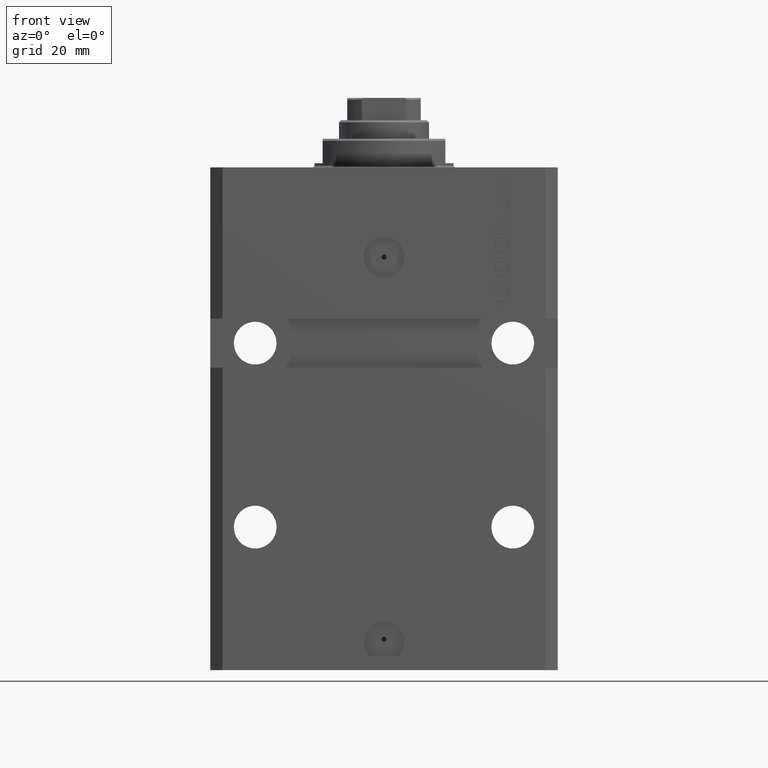
[diagram: clean part render]
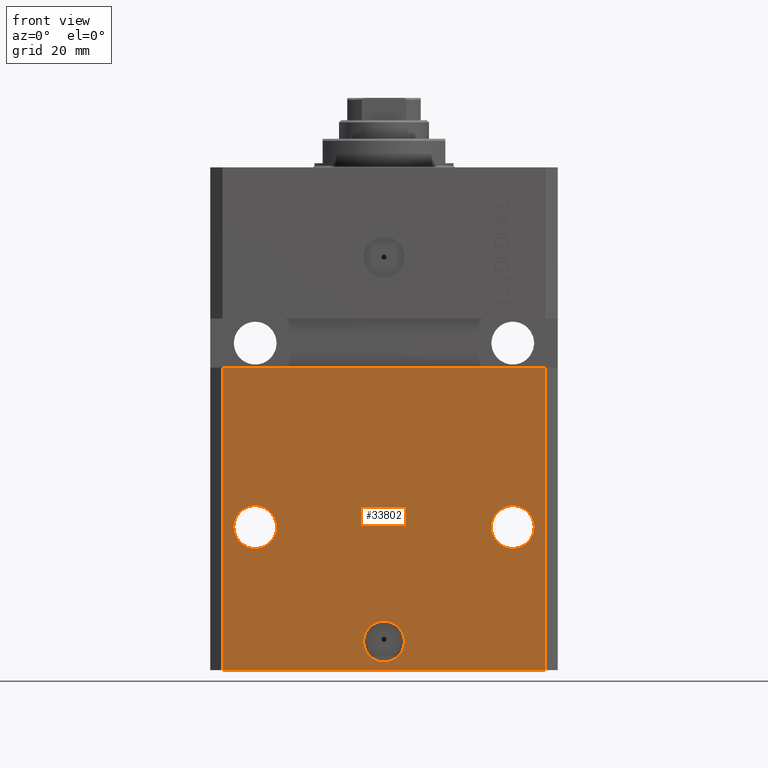
[diagram: same view with one face highlighted and labeled with its STEP entity id]
A machine part, front view. The second image highlights one B-rep face of the part: STEP entity #33802.
In plain terms, the highlighted planar face has unit normal (0, -1, 0).
Its self-contained STEP definition (entity closure, byte-faithful):
#61 = ORIENTED_EDGE ( 'NONE', *, *, #12768, .F. ) ;
#971 = CARTESIAN_POINT ( 'NONE',  ( -39.50000000000000000, -31.50000000000000711, -48.99999999999999289 ) ) ;
#1063 = VERTEX_POINT ( 'NONE', #7885 ) ;
#1460 = AXIS2_PLACEMENT_3D ( 'NONE', #17912, #22019, #25448 ) ;
#1556 = VERTEX_POINT ( 'NONE', #971 ) ;
#1798 = VERTEX_POINT ( 'NONE', #11627 ) ;
#3583 = FACE_BOUND ( 'NONE', #20636, .T. ) ;
#4498 = EDGE_CURVE ( 'NONE', #38199, #16500, #16995, .T. ) ;
#6102 = LINE ( 'NONE', #14986, #13662 ) ;
#6392 = VECTOR ( 'NONE', #36258, 1000.000000000000000 ) ;
#6416 = CIRCLE ( 'NONE', #25791, 5.249999999999997335 ) ;
#6567 = VERTEX_POINT ( 'NONE', #44858 ) ;
#6770 = FACE_OUTER_BOUND ( 'NONE', #29293, .T. ) ;
#7885 = CARTESIAN_POINT ( 'NONE',  ( -39.50000000000000711, -31.50000000000000000, -123.0000000000000000 ) ) ;
#8017 = AXIS2_PLACEMENT_3D ( 'NONE', #9445, #39141, #16976 ) ;
#9220 = CARTESIAN_POINT ( 'NONE',  ( -5.000000000000006217, -31.50000000000000000, -115.9999999999999858 ) ) ;
#9415 = CARTESIAN_POINT ( 'NONE',  ( -31.50000000000001421, -31.50000000000000711, -88.00000000000000000 ) ) ;
#9445 = CARTESIAN_POINT ( 'NONE',  ( -31.50000000000001421, -31.50000000000000711, -88.00000000000000000 ) ) ;
#9446 = ORIENTED_EDGE ( 'NONE', *, *, #19625, .F. ) ;
#10016 = EDGE_CURVE ( 'NONE', #16500, #38199, #26492, .T. ) ;
#10411 = FACE_BOUND ( 'NONE', #45045, .T. ) ;
#10451 = ORIENTED_EDGE ( 'NONE', *, *, #34429, .F. ) ;
#11627 = CARTESIAN_POINT ( 'NONE',  ( 39.50000000000001421, -31.49999999999999289, -48.99999999999997868 ) ) ;
#12768 = EDGE_CURVE ( 'NONE', #42271, #43674, #6416, .T. ) ;
#13244 = ORIENTED_EDGE ( 'NONE', *, *, #16284, .F. ) ;
#13662 = VECTOR ( 'NONE', #28199, 1000.000000000000000 ) ;
#14120 = CARTESIAN_POINT ( 'NONE',  ( -42.50000000000000000, -31.50000000000000711, -48.99999999999999289 ) ) ;
#14542 = CARTESIAN_POINT ( 'NONE',  ( 31.50000000000001421, -31.49999999999999289, -88.00000000000000000 ) ) ;
#14599 = CARTESIAN_POINT ( 'NONE',  ( -39.50000000000000711, -31.50000000000000000, -123.0000000000000000 ) ) ;
#14986 = CARTESIAN_POINT ( 'NONE',  ( 39.50000000000000711, -31.50000000000000000, -123.0000000000000000 ) ) ;
#16284 = EDGE_CURVE ( 'NONE', #1556, #1798, #26256, .T. ) ;
#16500 = VERTEX_POINT ( 'NONE', #9220 ) ;
#16976 = DIRECTION ( 'NONE',  ( -1.000000000000000000, 0.000000000000000000, 0.000000000000000000 ) ) ;
#16995 = CIRCLE ( 'NONE', #1460, 5.000000000000006217 ) ;
#17248 = VERTEX_POINT ( 'NONE', #20707 ) ;
#17912 = CARTESIAN_POINT ( 'NONE',  ( 0.000000000000000000, -31.50000000000000000, -115.9999999999999858 ) ) ;
#18175 = CARTESIAN_POINT ( 'NONE',  ( -39.50000000000000711, -31.50000000000000000, -123.0000000000000000 ) ) ;
#18422 = DIRECTION ( 'NONE',  ( 0.000000000000000000, -0.000000000000000000, -1.000000000000000000 ) ) ;
#18485 = DIRECTION ( 'NONE',  ( 1.176083712526788232E-16, -1.000000000000000000, 0.000000000000000000 ) ) ;
#19447 = CIRCLE ( 'NONE', #34204, 5.249999999999997335 ) ;
#19625 = EDGE_CURVE ( 'NONE', #17248, #6567, #29766, .T. ) ;
#19796 = ORIENTED_EDGE ( 'NONE', *, *, #10016, .F. ) ;
#20179 = CARTESIAN_POINT ( 'NONE',  ( 0.000000000000000000, -31.50000000000000000, -115.9999999999999858 ) ) ;
#20403 = EDGE_LOOP ( 'NONE', ( #27817, #19796 ) ) ;
#20636 = EDGE_LOOP ( 'NONE', ( #9446, #22363 ) ) ;
#20707 = CARTESIAN_POINT ( 'NONE',  ( -26.25000000000001776, -31.50000000000000711, -88.00000000000000000 ) ) ;
#22019 = DIRECTION ( 'NONE',  ( 1.176083712526788232E-16, -1.000000000000000000, 0.000000000000000000 ) ) ;
#22210 = DIRECTION ( 'NONE',  ( 0.000000000000000000, 0.000000000000000000, 1.000000000000000000 ) ) ;
#22363 = ORIENTED_EDGE ( 'NONE', *, *, #39473, .F. ) ;
#22527 = PLANE ( 'NONE',  #47222 ) ;
#24056 = CARTESIAN_POINT ( 'NONE',  ( 5.000000000000006217, -31.50000000000000000, -115.9999999999999858 ) ) ;
#24248 = DIRECTION ( 'NONE',  ( 1.176083712526788232E-16, -1.000000000000000000, 0.000000000000000000 ) ) ;
#24536 = VERTEX_POINT ( 'NONE', #47810 ) ;
#25448 = DIRECTION ( 'NONE',  ( 1.000000000000000000, 0.000000000000000000, 0.000000000000000000 ) ) ;
#25495 = DIRECTION ( 'NONE',  ( 1.176083712526788232E-16, -1.000000000000000000, 0.000000000000000000 ) ) ;
#25791 = AXIS2_PLACEMENT_3D ( 'NONE', #14542, #25495, #29378 ) ;
#26250 = CIRCLE ( 'NONE', #33225, 5.249999999999997335 ) ;
#26256 = LINE ( 'NONE', #14120, #6392 ) ;
#26366 = EDGE_CURVE ( 'NONE', #1063, #24536, #47958, .T. ) ;
#26492 = CIRCLE ( 'NONE', #30336, 5.000000000000006217 ) ;
#27817 = ORIENTED_EDGE ( 'NONE', *, *, #4498, .F. ) ;
#28175 = DIRECTION ( 'NONE',  ( 1.000000000000000000, 0.000000000000000000, 0.000000000000000000 ) ) ;
#28199 = DIRECTION ( 'NONE',  ( 0.000000000000000000, 0.000000000000000000, 1.000000000000000000 ) ) ;
#28945 = EDGE_CURVE ( 'NONE', #24536, #1798, #6102, .T. ) ;
#29293 = EDGE_LOOP ( 'NONE', ( #13244, #30859, #38409, #44267 ) ) ;
#29378 = DIRECTION ( 'NONE',  ( 1.000000000000000000, 0.000000000000000000, 0.000000000000000000 ) ) ;
#29424 = DIRECTION ( 'NONE',  ( 1.000000000000000000, 0.000000000000000000, 0.000000000000000000 ) ) ;
#29763 = LINE ( 'NONE', #45086, #43256 ) ;
#29766 = CIRCLE ( 'NONE', #8017, 5.249999999999997335 ) ;
#29902 = CARTESIAN_POINT ( 'NONE',  ( 31.50000000000001421, -31.49999999999999289, -88.00000000000000000 ) ) ;
#30336 = AXIS2_PLACEMENT_3D ( 'NONE', #20179, #31348, #28175 ) ;
#30859 = ORIENTED_EDGE ( 'NONE', *, *, #31690, .F. ) ;
#31348 = DIRECTION ( 'NONE',  ( 1.176083712526788232E-16, -1.000000000000000000, 0.000000000000000000 ) ) ;
#31690 = EDGE_CURVE ( 'NONE', #1063, #1556, #29763, .T. ) ;
#33225 = AXIS2_PLACEMENT_3D ( 'NONE', #29902, #18485, #29424 ) ;
#33802 = ADVANCED_FACE ( 'NONE', ( #47637, #10411, #3583, #6770 ), #22527, .T. ) ;
#34204 = AXIS2_PLACEMENT_3D ( 'NONE', #9415, #24248, #39114 ) ;
#34429 = EDGE_CURVE ( 'NONE', #43674, #42271, #26250, .T. ) ;
#34638 = VECTOR ( 'NONE', #36277, 1000.000000000000000 ) ;
#36258 = DIRECTION ( 'NONE',  ( 1.000000000000000000, 1.632680918566406300E-16, 1.632680918566406300E-16 ) ) ;
#36277 = DIRECTION ( 'NONE',  ( 1.000000000000000000, 0.000000000000000000, 0.000000000000000000 ) ) ;
#38199 = VERTEX_POINT ( 'NONE', #24056 ) ;
#38409 = ORIENTED_EDGE ( 'NONE', *, *, #26366, .T. ) ;
#39114 = DIRECTION ( 'NONE',  ( -1.000000000000000000, 0.000000000000000000, 0.000000000000000000 ) ) ;
#39141 = DIRECTION ( 'NONE',  ( 1.176083712526788232E-16, -1.000000000000000000, 0.000000000000000000 ) ) ;
#39473 = EDGE_CURVE ( 'NONE', #6567, #17248, #19447, .T. ) ;
#41429 = CARTESIAN_POINT ( 'NONE',  ( 26.25000000000001776, -31.49999999999999289, -88.00000000000000000 ) ) ;
#42271 = VERTEX_POINT ( 'NONE', #41429 ) ;
#43256 = VECTOR ( 'NONE', #22210, 1000.000000000000000 ) ;
#43674 = VERTEX_POINT ( 'NONE', #47753 ) ;
#44201 = DIRECTION ( 'NONE',  ( 0.000000000000000000, -1.000000000000000000, 0.000000000000000000 ) ) ;
#44267 = ORIENTED_EDGE ( 'NONE', *, *, #28945, .T. ) ;
#44858 = CARTESIAN_POINT ( 'NONE',  ( -36.75000000000001421, -31.50000000000000711, -88.00000000000000000 ) ) ;
#45045 = EDGE_LOOP ( 'NONE', ( #10451, #61 ) ) ;
#45086 = CARTESIAN_POINT ( 'NONE',  ( -39.50000000000000711, -31.50000000000000000, -123.0000000000000000 ) ) ;
#47222 = AXIS2_PLACEMENT_3D ( 'NONE', #18175, #44201, #18422 ) ;
#47637 = FACE_BOUND ( 'NONE', #20403, .T. ) ;
#47753 = CARTESIAN_POINT ( 'NONE',  ( 36.75000000000001421, -31.49999999999999289, -88.00000000000000000 ) ) ;
#47810 = CARTESIAN_POINT ( 'NONE',  ( 39.50000000000000711, -31.50000000000000000, -123.0000000000000000 ) ) ;
#47958 = LINE ( 'NONE', #14599, #34638 ) ;